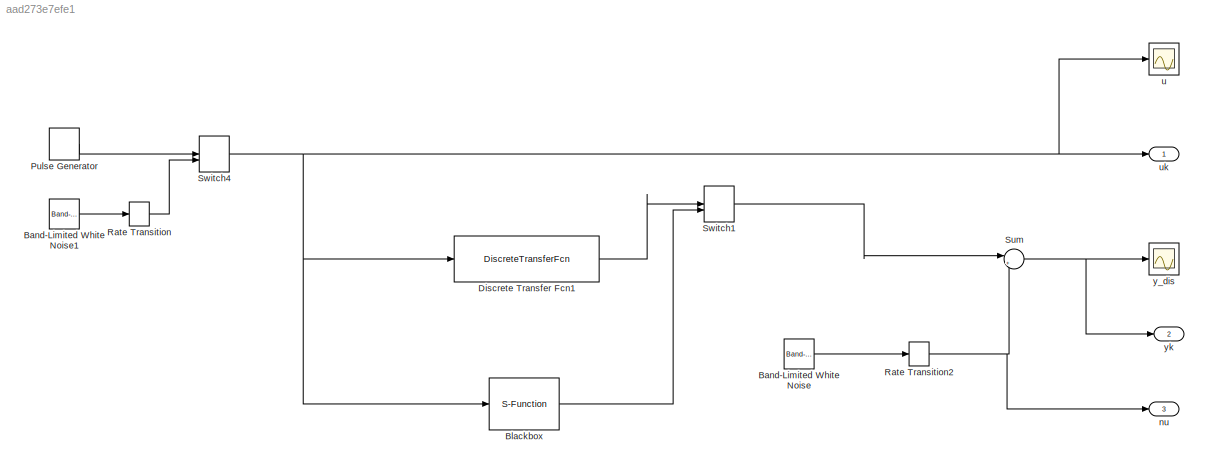
MODEL slx_aad273e7efe1
KIND model
CONFIG AbsTol = auto
CONFIG EnableMultiTasking = on
CONFIG FixedStep = 0.001
CONFIG MaxStep = auto
CONFIG MinStep = auto
CONFIG PostLoadFcn = , if any(exist('dsrtsu_mdlpostloadfcn', 'file') == [2, 3, 6]), try dsrtsu_mdlpostloadfcn('Execute', bdroot); catch fprintf('Error in PostLoadFcn (dsrtsu_mdlpostloadfcn) for model "%s":\n %s\n', bdroot, lasterr); end, end, \n
CONFIG RelTol = 1e-3
CONFIG SampleTimeConstraint = Unconstrained
CONFIG SolverName = FixedStepDiscrete
CONFIG StartTime = 0.0
CONFIG StopTime = 100
BLOCK [Reference] Band-Limited White Noise  REF=simulink/Sources/Band-Limited
White Noise
  SourceBlock = simulink/Sources/Band-Limited\nWhite Noise
  SourceType = Band-Limited White Noise.
BLOCK [Reference] Band-Limited White Noise1  REF=simulink/Sources/Band-Limited
White Noise
  SourceBlock = simulink/Sources/Band-Limited\nWhite Noise
  SourceType = Band-Limited White Noise.
BLOCK [S-Function] Blackbox
  EnableBusSupport = off
  FunctionName = Blackbox_2024
  SFcnIsStateOwnerBlock = off
  SFunctionDeploymentMode = off
BLOCK [DiscreteTransferFcn] Discrete Transfer Fcn1
  Denominator = [1 -1.0646 0.3679]
  InputPortMap = u0
  Numerator = [0.7585 -0.4552]
BLOCK [DiscretePulseGenerator] Pulse Generator
  Amplitude = 20
  Period = 1
  PulseType = Time based
  PulseWidth = 50
BLOCK [RateTransition] Rate Transition
  Integrity = off
  OutPortSampleTimeOpt = Inherit
BLOCK [RateTransition] Rate Transition2
  Integrity = off
  OutPortSampleTimeOpt = Inherit
BLOCK [Sum] Sum
  Inputs = |++
BLOCK [ManualSwitch] Switch1
  CurrentSetting = 0
BLOCK [ManualSwitch] Switch4
BLOCK [Outport] nu
  Port = 3
BLOCK [Scope] u
  Floating = off
  NumInputPorts = 1
  ScopeSpecificationString = Simulink.scopes.TimeScopeBlockCfg('CurrentConfiguration', extmgr.ConfigurationSet(extmgr.Configuration('Core','General UI',true),extmgr.Configuration('Core','Source UI',true),extmgr.Configuration('Sources','WiredSimulink',true,'DataLoggingVariableName','ScopeData4','DataLoggingSaveFormat','StructureWithTime','DataLoggingLimitDataPoints',true,'DataLoggingDecimation','1','DataLoggingDecimateData',tr...<+1685ch>
BLOCK [Outport] uk
BLOCK [Scope] y_dis
  Floating = off
  NumInputPorts = 1
  ScopeSpecificationString = Simulink.scopes.TimeScopeBlockCfg('CurrentConfiguration', extmgr.ConfigurationSet(extmgr.Configuration('Core','General UI',true),extmgr.Configuration('Core','Source UI',true),extmgr.Configuration('Sources','WiredSimulink',true,'DataLoggingVariableName','ScopeData1','DataLoggingSaveFormat','StructureWithTime','DataLoggingDecimation','1','DataLoggingDecimateData',true),extmgr.Configuration('Visuals'...<+1717ch>
BLOCK [Outport] yk
  Port = 2
LINE Band-Limited White Noise1:1 -> Rate Transition:1
LINE Band-Limited White Noise:1 -> Rate Transition2:1
LINE Blackbox:1 -> Switch1:2
LINE Discrete Transfer Fcn1:1 -> Switch1:1
LINE Pulse Generator:1 -> Switch4:1
NET Rate Transition2:1 -> Sum:2, nu:1
LINE Rate Transition:1 -> Switch4:2
NET Sum:1 -> y_dis:1, yk:1
LINE Switch1:1 -> Sum:1
NET Switch4:1 -> Blackbox:1, Discrete Transfer Fcn1:1, u:1, uk:1
note: NET lines group one-source signal fan-out (src -> all destinations, sorted); 1:1 wires keep LINE
